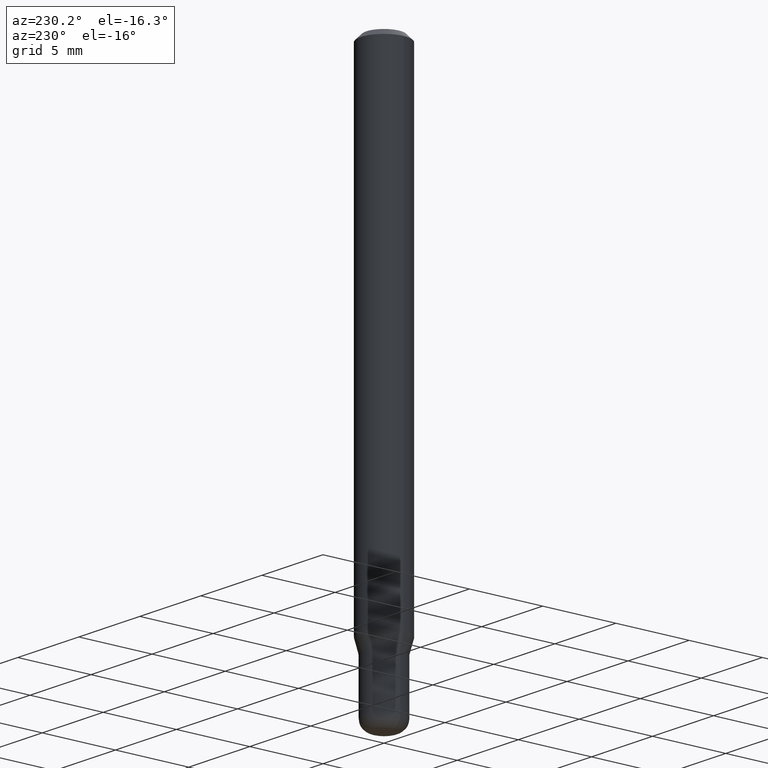
[diagram: clean part render]
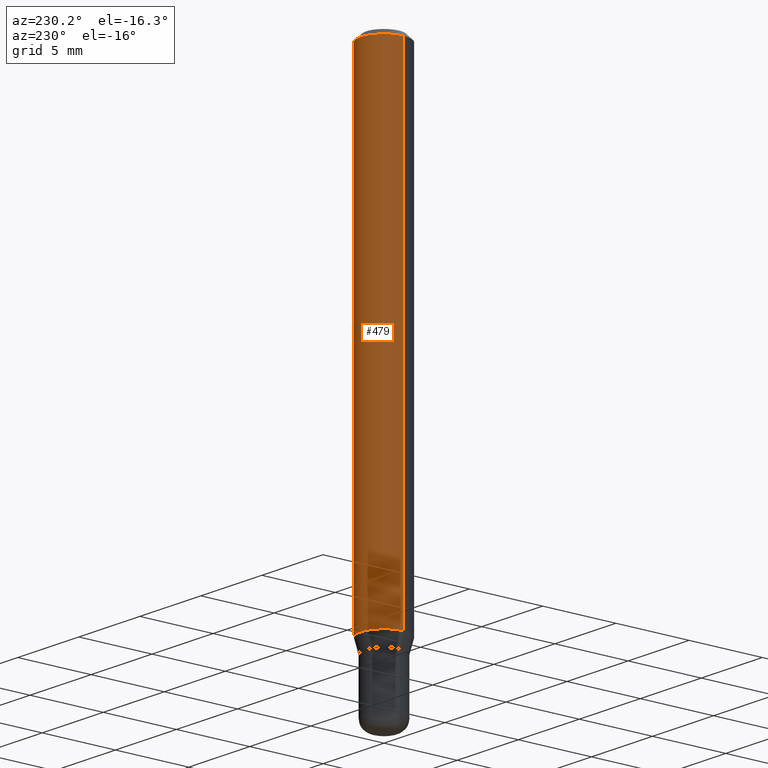
[diagram: same view with one face highlighted and labeled with its STEP entity id]
A machine part, auxiliary view. The second image highlights one B-rep face of the part: STEP entity #479.
In plain terms, the highlighted cylindrical surface (edge-blend (fillet) strip) has radius 1.5875 mm, axis along (-0, 0, 1).
Its self-contained STEP definition (entity closure, byte-faithful):
#8 = DIRECTION ( 'NONE',  ( 1.000000000000000000, -6.982962677686262766E-15, 0.000000000000000000 ) ) ;
#18 = EDGE_CURVE ( 'NONE', #55, #305, #192, .T. ) ;
#26 = EDGE_CURVE ( 'NONE', #305, #404, #515, .T. ) ;
#33 = ORIENTED_EDGE ( 'NONE', *, *, #26, .T. ) ;
#55 = VERTEX_POINT ( 'NONE', #157 ) ;
#74 = VERTEX_POINT ( 'NONE', #242 ) ;
#77 = DIRECTION ( 'NONE',  ( -2.445468806185136877E-29, 3.491481338843145188E-15, 1.000000000000000000 ) ) ;
#80 = CARTESIAN_POINT ( 'NONE',  ( -0.06250000000000000000, 4.440892098500626162E-16, -3.074334431409316114E-30 ) ) ;
#81 = DIRECTION ( 'NONE',  ( -2.445468806185136597E-29, 3.491481338843145583E-15, 1.000000000000000000 ) ) ;
#90 = CYLINDRICAL_SURFACE ( 'NONE', #137, 0.06250000000000000000 ) ;
#93 = VECTOR ( 'NONE', #77, 39.37007874015748143 ) ;
#106 = LINE ( 'NONE', #435, #93 ) ;
#132 = DIRECTION ( 'NONE',  ( -2.445468806185136597E-29, 3.491481338843145583E-15, 1.000000000000000000 ) ) ;
#137 = AXIS2_PLACEMENT_3D ( 'NONE', #288, #81, #486 ) ;
#148 = ORIENTED_EDGE ( 'NONE', *, *, #261, .F. ) ;
#149 = CARTESIAN_POINT ( 'NONE',  ( -0.06250000000000000000, -4.076260075986598044E-15, -1.294679491924312087 ) ) ;
#155 = DIRECTION ( 'NONE',  ( -2.445468806185136877E-29, 3.491481338843145188E-15, 1.000000000000000000 ) ) ;
#157 = CARTESIAN_POINT ( 'NONE',  ( 0.06250000000000000000, -4.956784453192051541E-15, -1.294679491924312087 ) ) ;
#169 = CARTESIAN_POINT ( 'NONE',  ( 3.668203209277632395E-31, -5.237222008264614861E-17, -0.01499999999999970281 ) ) ;
#183 = VECTOR ( 'NONE', #155, 39.37007874015748143 ) ;
#192 = CIRCLE ( 'NONE', #379, 0.06250000000000000000 ) ;
#197 = DIRECTION ( 'NONE',  ( -2.445468806185136597E-29, 3.491481338843145583E-15, 1.000000000000000000 ) ) ;
#201 = CIRCLE ( 'NONE', #428, 0.06250000000000000000 ) ;
#241 = CARTESIAN_POINT ( 'NONE',  ( -0.06250000000000000000, -1.842271543109590267E-15, -0.01499999999999970281 ) ) ;
#242 = CARTESIAN_POINT ( 'NONE',  ( 0.06250000000000000000, -4.888073874380378612E-16, -0.01499999999999970281 ) ) ;
#244 = CARTESIAN_POINT ( 'NONE',  ( 3.166098311508526589E-29, -4.520349285836659871E-15, -1.294679491924312087 ) ) ;
#261 = EDGE_CURVE ( 'NONE', #74, #404, #201, .T. ) ;
#288 = CARTESIAN_POINT ( 'NONE',  ( 0.000000000000000000, 0.000000000000000000, 0.000000000000000000 ) ) ;
#302 = ORIENTED_EDGE ( 'NONE', *, *, #18, .T. ) ;
#305 = VERTEX_POINT ( 'NONE', #149 ) ;
#312 = ORIENTED_EDGE ( 'NONE', *, *, #330, .F. ) ;
#330 = EDGE_CURVE ( 'NONE', #55, #74, #106, .T. ) ;
#346 = EDGE_LOOP ( 'NONE', ( #302, #33, #148, #312 ) ) ;
#379 = AXIS2_PLACEMENT_3D ( 'NONE', #244, #197, #8 ) ;
#404 = VERTEX_POINT ( 'NONE', #241 ) ;
#428 = AXIS2_PLACEMENT_3D ( 'NONE', #169, #132, #502 ) ;
#435 = CARTESIAN_POINT ( 'NONE',  ( 0.06250000000000000000, -4.364351673553916694E-16, 3.047610484872459871E-30 ) ) ;
#452 = FACE_OUTER_BOUND ( 'NONE', #346, .T. ) ;
#479 = ADVANCED_FACE ( 'NONE', ( #452 ), #90, .T. ) ;
#486 = DIRECTION ( 'NONE',  ( 1.000000000000000000, -6.982962677686266711E-15, 4.876176775795935793E-29 ) ) ;
#502 = DIRECTION ( 'NONE',  ( 1.000000000000000000, -6.982962677686266711E-15, 0.000000000000000000 ) ) ;
#515 = LINE ( 'NONE', #80, #183 ) ;